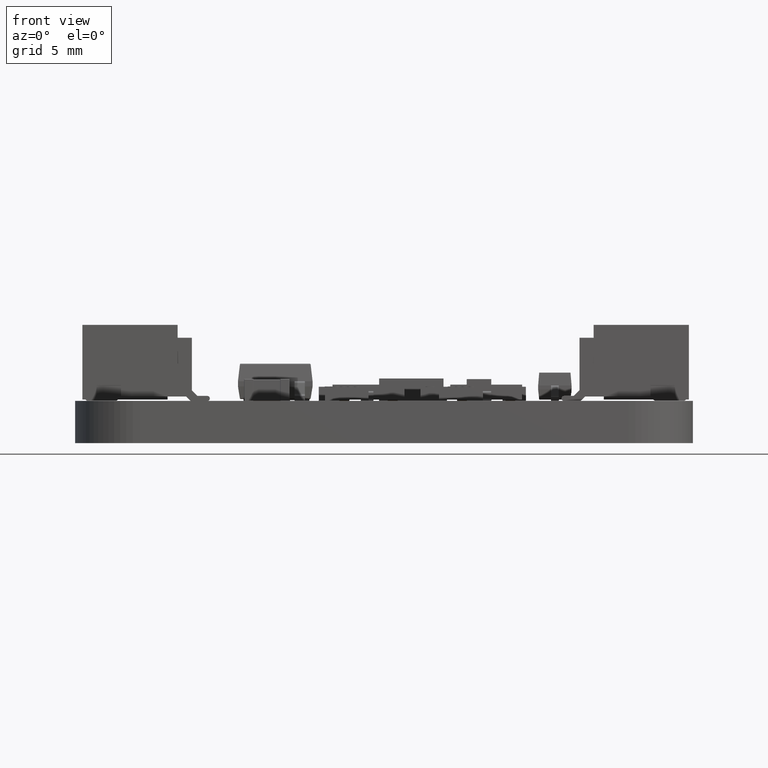
[diagram: clean part render]
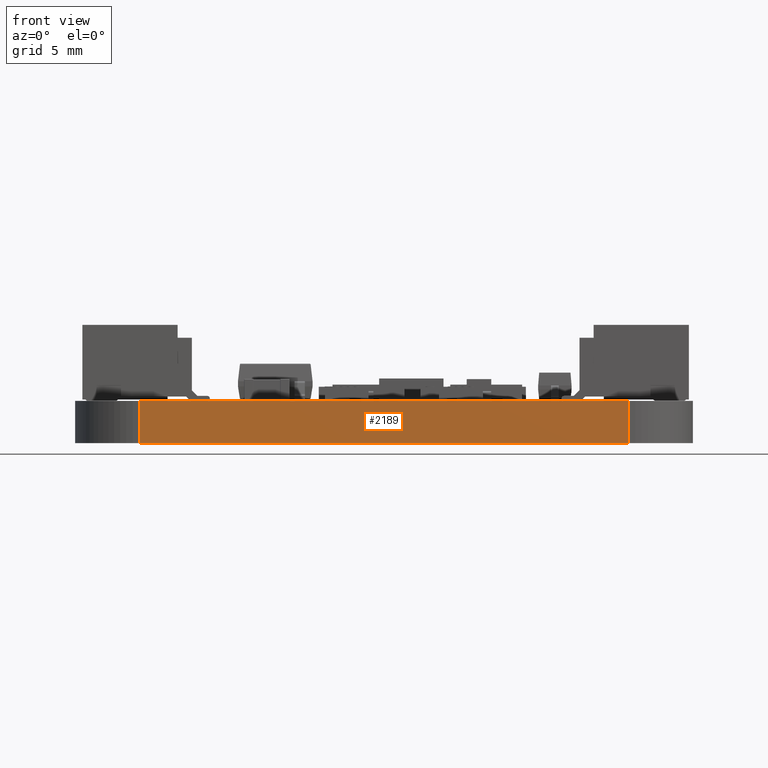
[diagram: same view with one face highlighted and labeled with its STEP entity id]
A machine part, front view. The second image highlights one B-rep face of the part: STEP entity #2189.
In plain terms, the highlighted planar face has unit normal (0, 1, 0).
Its self-contained STEP definition (entity closure, byte-faithful):
#2131 = EDGE_CURVE('',#2132,#2134,#2136,.T.);
#2132 = VERTEX_POINT('',#2133);
#2133 = CARTESIAN_POINT('',(19.5,-13.5,-0.82));
#2134 = VERTEX_POINT('',#2135);
#2135 = CARTESIAN_POINT('',(19.5,-13.5,0.82));
#2136 = LINE('',#2137,#2138);
#2137 = CARTESIAN_POINT('',(19.5,-13.5,-0.82));
#2138 = VECTOR('',#2139,1.);
#2139 = DIRECTION('',(0.,0.,1.));
#2164 = VERTEX_POINT('',#2165);
#2165 = CARTESIAN_POINT('',(0.5,-13.5,0.82));
#2171 = EDGE_CURVE('',#2172,#2164,#2174,.T.);
#2172 = VERTEX_POINT('',#2173);
#2173 = CARTESIAN_POINT('',(0.5,-13.5,-0.82));
#2174 = LINE('',#2175,#2176);
#2175 = CARTESIAN_POINT('',(0.5,-13.5,-0.82));
#2176 = VECTOR('',#2177,1.);
#2177 = DIRECTION('',(0.,0.,1.));
#2189 = ADVANCED_FACE('',(#2190),#2206,.F.);
#2190 = FACE_BOUND('',#2191,.F.);
#2191 = EDGE_LOOP('',(#2192,#2193,#2199,#2200));
#2192 = ORIENTED_EDGE('',*,*,#2171,.T.);
#2193 = ORIENTED_EDGE('',*,*,#2194,.T.);
#2194 = EDGE_CURVE('',#2164,#2134,#2195,.T.);
#2195 = LINE('',#2196,#2197);
#2196 = CARTESIAN_POINT('',(0.5,-13.5,0.82));
#2197 = VECTOR('',#2198,1.);
#2198 = DIRECTION('',(1.,0.,0.));
#2199 = ORIENTED_EDGE('',*,*,#2131,.F.);
#2200 = ORIENTED_EDGE('',*,*,#2201,.F.);
#2201 = EDGE_CURVE('',#2172,#2132,#2202,.T.);
#2202 = LINE('',#2203,#2204);
#2203 = CARTESIAN_POINT('',(0.5,-13.5,-0.82));
#2204 = VECTOR('',#2205,1.);
#2205 = DIRECTION('',(1.,0.,0.));
#2206 = PLANE('',#2207);
#2207 = AXIS2_PLACEMENT_3D('',#2208,#2209,#2210);
#2208 = CARTESIAN_POINT('',(0.5,-13.5,-0.82));
#2209 = DIRECTION('',(0.,1.,0.));
#2210 = DIRECTION('',(1.,0.,0.));